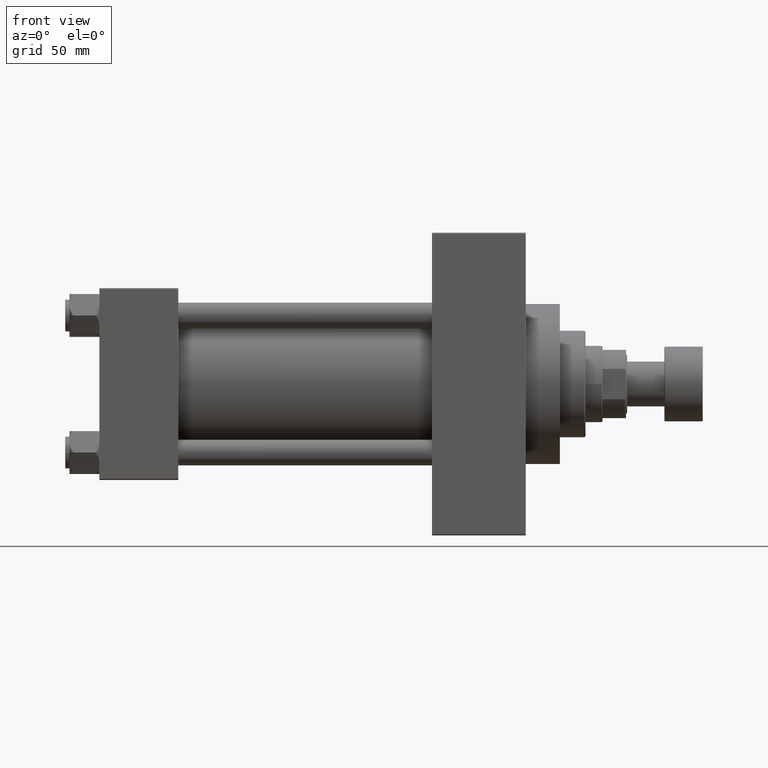
[diagram: clean part render]
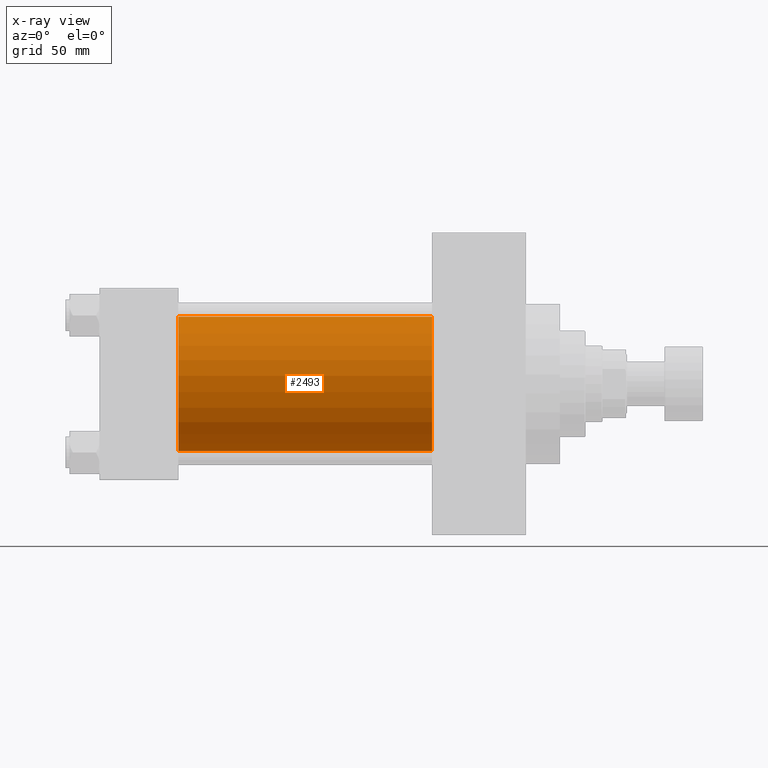
[diagram: x-ray — body ghosted, one internal face saturated and labeled with its STEP entity id]
A machine part, front view, then the same camera in x-ray: the body is ghosted and one INTERNAL B-rep face — a face not visible from any outside direction — is saturated and labeled: STEP entity #2493.
In plain terms, the highlighted cylindrical surface (partial cylindrical patch) has radius 31.5 mm, axis along (-1, -0, -0).
Its self-contained STEP definition (entity closure, byte-faithful):
#190 = VERTEX_POINT ( 'NONE', #13107 ) ;
#1267 = CARTESIAN_POINT ( 'NONE',  ( 37.00000000000000000, -2.602085213965210642E-15, 0.000000000000000000 ) ) ;
#1511 = AXIS2_PLACEMENT_3D ( 'NONE', #1267, #30835, #8084 ) ;
#2493 = ADVANCED_FACE ( 'NONE', ( #11340 ), #18614, .F. ) ;
#3574 = DIRECTION ( 'NONE',  ( 0.000000000000000000, 0.000000000000000000, 1.000000000000000000 ) ) ;
#4780 = EDGE_CURVE ( 'NONE', #22757, #190, #22049, .T. ) ;
#5402 = CARTESIAN_POINT ( 'NONE',  ( 37.00000000000000000, 1.255552203348951850E-15, -31.50000000000000000 ) ) ;
#8084 = DIRECTION ( 'NONE',  ( 0.000000000000000000, 0.000000000000000000, -1.000000000000000000 ) ) ;
#9998 = EDGE_CURVE ( 'NONE', #22757, #21633, #31545, .T. ) ;
#11340 = FACE_OUTER_BOUND ( 'NONE', #16859, .T. ) ;
#12016 = VERTEX_POINT ( 'NONE', #5402 ) ;
#12099 = ORIENTED_EDGE ( 'NONE', *, *, #47843, .F. ) ;
#12800 = AXIS2_PLACEMENT_3D ( 'NONE', #32099, #14624, #47535 ) ;
#13107 = CARTESIAN_POINT ( 'NONE',  ( 156.0000000000000000, 1.255552203348951850E-15, -31.50000000000000000 ) ) ;
#13139 = DIRECTION ( 'NONE',  ( -1.000000000000000000, -0.000000000000000000, -0.000000000000000000 ) ) ;
#14624 = DIRECTION ( 'NONE',  ( 1.000000000000000000, 0.000000000000000000, 0.000000000000000000 ) ) ;
#15212 = DIRECTION ( 'NONE',  ( -1.000000000000000000, -0.000000000000000000, -0.000000000000000000 ) ) ;
#16859 = EDGE_LOOP ( 'NONE', ( #46896, #28469, #12099, #28161 ) ) ;
#17607 = VECTOR ( 'NONE', #13139, 1000.000000000000000 ) ;
#17991 = LINE ( 'NONE', #25471, #47716 ) ;
#18614 = CYLINDRICAL_SURFACE ( 'NONE', #30489, 31.50000000000000000 ) ;
#21633 = VERTEX_POINT ( 'NONE', #42352 ) ;
#21988 = CARTESIAN_POINT ( 'NONE',  ( 156.0000000000000000, -2.602085213965210642E-15, 0.000000000000000000 ) ) ;
#22049 = CIRCLE ( 'NONE', #12800, 31.50000000000000000 ) ;
#22757 = VERTEX_POINT ( 'NONE', #28255 ) ;
#24725 = CIRCLE ( 'NONE', #1511, 31.50000000000000000 ) ;
#25471 = CARTESIAN_POINT ( 'NONE',  ( 156.0000000000000000, 1.255552203348951850E-15, -31.50000000000000000 ) ) ;
#28161 = ORIENTED_EDGE ( 'NONE', *, *, #9998, .F. ) ;
#28255 = CARTESIAN_POINT ( 'NONE',  ( 156.0000000000000000, -2.602085213965210642E-15, 31.50000000000000000 ) ) ;
#28469 = ORIENTED_EDGE ( 'NONE', *, *, #42252, .T. ) ;
#30489 = AXIS2_PLACEMENT_3D ( 'NONE', #21988, #15212, #3574 ) ;
#30835 = DIRECTION ( 'NONE',  ( 1.000000000000000000, 0.000000000000000000, 0.000000000000000000 ) ) ;
#31545 = LINE ( 'NONE', #35404, #17607 ) ;
#32099 = CARTESIAN_POINT ( 'NONE',  ( 156.0000000000000000, -2.602085213965210642E-15, 0.000000000000000000 ) ) ;
#35404 = CARTESIAN_POINT ( 'NONE',  ( 156.0000000000000000, -2.602085213965210642E-15, 31.50000000000000000 ) ) ;
#40245 = DIRECTION ( 'NONE',  ( -1.000000000000000000, -0.000000000000000000, -0.000000000000000000 ) ) ;
#42252 = EDGE_CURVE ( 'NONE', #190, #12016, #17991, .T. ) ;
#42352 = CARTESIAN_POINT ( 'NONE',  ( 37.00000000000000000, -2.602085213965210642E-15, 31.50000000000000000 ) ) ;
#46896 = ORIENTED_EDGE ( 'NONE', *, *, #4780, .T. ) ;
#47535 = DIRECTION ( 'NONE',  ( 0.000000000000000000, 0.000000000000000000, -1.000000000000000000 ) ) ;
#47716 = VECTOR ( 'NONE', #40245, 1000.000000000000000 ) ;
#47843 = EDGE_CURVE ( 'NONE', #21633, #12016, #24725, .T. ) ;